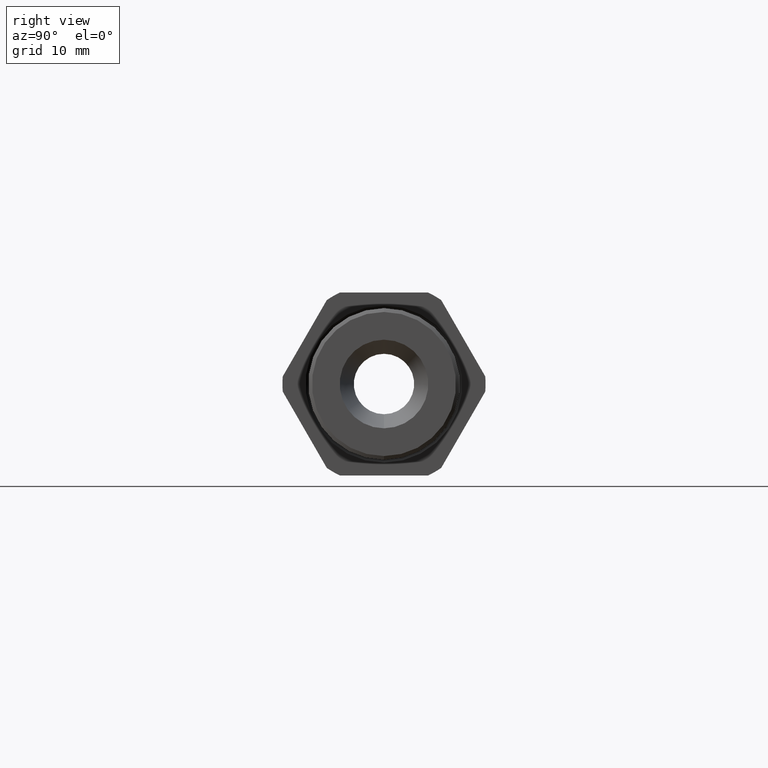
[diagram: clean part render]
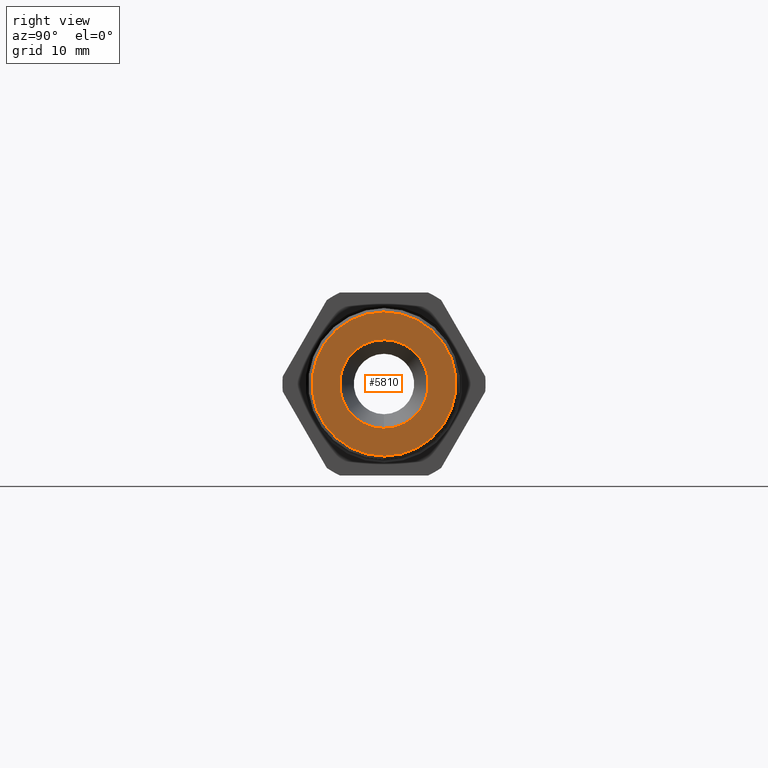
[diagram: same view with one face highlighted and labeled with its STEP entity id]
A machine part, right view. The second image highlights one B-rep face of the part: STEP entity #5810.
In plain terms, the highlighted planar face has unit normal (1, 0, 0).
Its self-contained STEP definition (entity closure, byte-faithful):
#1735 = CARTESIAN_POINT ( 'NONE',  ( 0.08000000000000007100, 0.0000000000000000000, -0.4174003163966267800 ) ) ;
#1821 = CARTESIAN_POINT ( 'NONE',  ( 0.08000000000000007100, 5.111679614382214800E-017, 0.4174003163966267800 ) ) ;
#1896 = DIRECTION ( 'NONE',  ( 0.0000000000000000000, 0.0000000000000000000, -1.000000000000000000 ) ) ;
#1897 = DIRECTION ( 'NONE',  ( -1.000000000000000000, 0.0000000000000000000, 0.0000000000000000000 ) ) ;
#1898 = CARTESIAN_POINT ( 'NONE',  ( 0.08000000000000007100, 0.0000000000000000000, 0.0000000000000000000 ) ) ;
#1899 = AXIS2_PLACEMENT_3D ( 'NONE', #1898, #1897, #1896 ) ;
#1900 = CIRCLE ( 'NONE', #1899, 0.4174003163966267800 ) ;
#2331 = CARTESIAN_POINT ( 'NONE',  ( 0.08000000000000009900, 3.143965231489412800E-017, 0.2567242435678894200 ) ) ;
#2500 = CARTESIAN_POINT ( 'NONE',  ( 0.08000000000000009900, 0.0000000000000000000, -0.2567242435678894200 ) ) ;
#2501 = DIRECTION ( 'NONE',  ( 0.0000000000000000000, 0.0000000000000000000, -1.000000000000000000 ) ) ;
#2502 = DIRECTION ( 'NONE',  ( 1.000000000000000000, 0.0000000000000000000, 0.0000000000000000000 ) ) ;
#2503 = CARTESIAN_POINT ( 'NONE',  ( 0.08000000000000009900, 0.0000000000000000000, 0.0000000000000000000 ) ) ;
#2504 = AXIS2_PLACEMENT_3D ( 'NONE', #2503, #2502, #2501 ) ;
#2505 = CIRCLE ( 'NONE', #2504, 0.2567242435678894200 ) ;
#5809 = EDGE_CURVE ( 'NONE', #14213, #14138, #7182, .T. ) ;
#5810 = ADVANCED_FACE ( 'NONE', ( #7177, #7176 ), #7175, .T. ) ;
#5811 = EDGE_LOOP ( 'NONE', ( #5812, #5814 ) ) ;
#5812 = ORIENTED_EDGE ( 'NONE', *, *, #5813, .F. ) ;
#5813 = EDGE_CURVE ( 'NONE', #13811, #13867, #7234, .T. ) ;
#5814 = ORIENTED_EDGE ( 'NONE', *, *, #13894, .F. ) ;
#5815 = EDGE_LOOP ( 'NONE', ( #5816, #5817 ) ) ;
#5816 = ORIENTED_EDGE ( 'NONE', *, *, #5809, .F. ) ;
#5817 = ORIENTED_EDGE ( 'NONE', *, *, #14212, .F. ) ;
#7175 = PLANE ( 'NONE',  #7238 ) ;
#7176 = FACE_BOUND ( 'NONE', #5815, .T. ) ;
#7177 = FACE_OUTER_BOUND ( 'NONE', #5811, .T. ) ;
#7178 = DIRECTION ( 'NONE',  ( 0.0000000000000000000, 0.0000000000000000000, -1.000000000000000000 ) ) ;
#7179 = DIRECTION ( 'NONE',  ( 1.000000000000000000, 0.0000000000000000000, 0.0000000000000000000 ) ) ;
#7180 = CARTESIAN_POINT ( 'NONE',  ( 0.08000000000000009900, 0.0000000000000000000, 0.0000000000000000000 ) ) ;
#7181 = AXIS2_PLACEMENT_3D ( 'NONE', #7180, #7179, #7178 ) ;
#7182 = CIRCLE ( 'NONE', #7181, 0.2567242435678894200 ) ;
#7230 = DIRECTION ( 'NONE',  ( 0.0000000000000000000, 0.0000000000000000000, -1.000000000000000000 ) ) ;
#7231 = DIRECTION ( 'NONE',  ( -1.000000000000000000, 0.0000000000000000000, 0.0000000000000000000 ) ) ;
#7232 = CARTESIAN_POINT ( 'NONE',  ( 0.08000000000000007100, 0.0000000000000000000, 0.0000000000000000000 ) ) ;
#7233 = AXIS2_PLACEMENT_3D ( 'NONE', #7232, #7231, #7230 ) ;
#7234 = CIRCLE ( 'NONE', #7233, 0.4174003163966267800 ) ;
#7235 = DIRECTION ( 'NONE',  ( 0.0000000000000000000, 0.0000000000000000000, -1.000000000000000000 ) ) ;
#7236 = DIRECTION ( 'NONE',  ( 1.000000000000000000, 0.0000000000000000000, 0.0000000000000000000 ) ) ;
#7237 = CARTESIAN_POINT ( 'NONE',  ( 0.08000000000000007100, 0.2567242435678894200, 0.0000000000000000000 ) ) ;
#7238 = AXIS2_PLACEMENT_3D ( 'NONE', #7237, #7236, #7235 ) ;
#13811 = VERTEX_POINT ( 'NONE', #1735 ) ;
#13867 = VERTEX_POINT ( 'NONE', #1821 ) ;
#13894 = EDGE_CURVE ( 'NONE', #13867, #13811, #1900, .T. ) ;
#14138 = VERTEX_POINT ( 'NONE', #2331 ) ;
#14212 = EDGE_CURVE ( 'NONE', #14138, #14213, #2505, .T. ) ;
#14213 = VERTEX_POINT ( 'NONE', #2500 ) ;